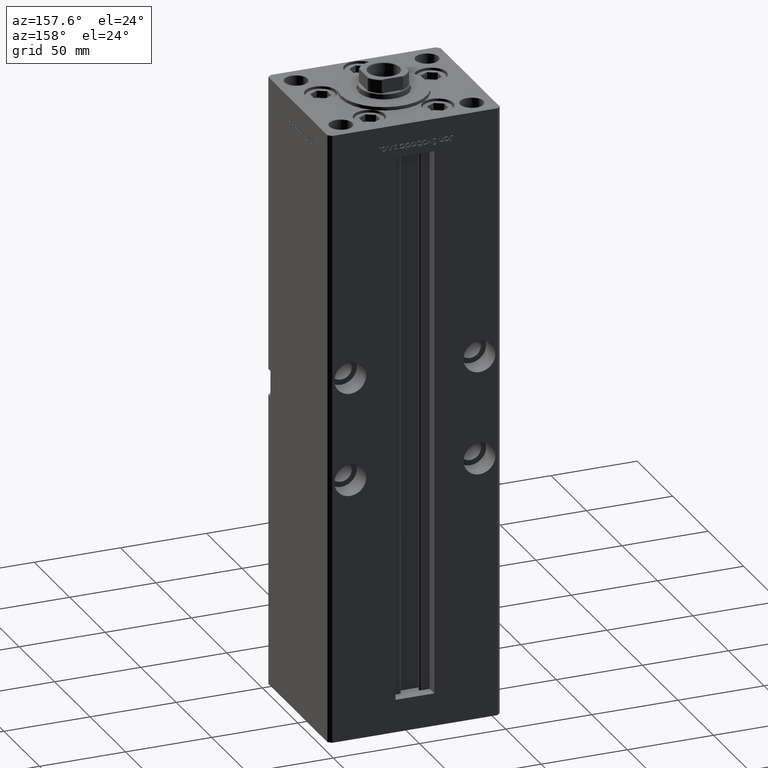
[diagram: clean part render]
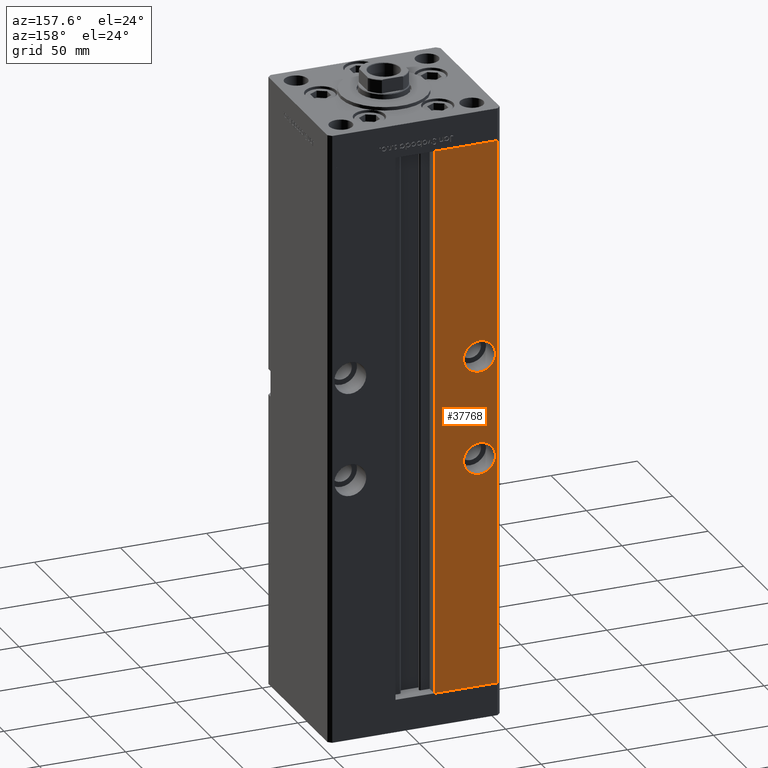
[diagram: same view with one face highlighted and labeled with its STEP entity id]
A machine part, auxiliary view. The second image highlights one B-rep face of the part: STEP entity #37768.
In plain terms, the highlighted planar face has unit normal (0, -1, 0).
Its self-contained STEP definition (entity closure, byte-faithful):
#368 = CARTESIAN_POINT ( 'NONE',  ( -11.24999999999999645, 43.50000000000000000, 318.5000000000000000 ) ) ;
#1638 = ORIENTED_EDGE ( 'NONE', *, *, #14879, .F. ) ;
#1739 = LINE ( 'NONE', #46866, #8565 ) ;
#2301 = VECTOR ( 'NONE', #45158, 1000.000000000000000 ) ;
#2702 = EDGE_CURVE ( 'NONE', #8433, #29006, #34728, .T. ) ;
#3136 = DIRECTION ( 'NONE',  ( 0.000000000000000000, 1.000000000000000000, 0.000000000000000000 ) ) ;
#3544 = ORIENTED_EDGE ( 'NONE', *, *, #37588, .F. ) ;
#5784 = DIRECTION ( 'NONE',  ( -1.000000000000000000, 0.000000000000000000, 0.000000000000000000 ) ) ;
#6402 = CARTESIAN_POINT ( 'NONE',  ( -37.50000000000000000, 43.50000000000000000, 133.5000000000000000 ) ) ;
#7619 = FACE_BOUND ( 'NONE', #26360, .T. ) ;
#7885 = FACE_OUTER_BOUND ( 'NONE', #25953, .T. ) ;
#8371 = LINE ( 'NONE', #16676, #2301 ) ;
#8433 = VERTEX_POINT ( 'NONE', #28416 ) ;
#8565 = VECTOR ( 'NONE', #5784, 1000.000000000000000 ) ;
#8817 = DIRECTION ( 'NONE',  ( 0.000000000000000000, 1.000000000000000000, -0.000000000000000000 ) ) ;
#10176 = AXIS2_PLACEMENT_3D ( 'NONE', #28273, #52207, #15930 ) ;
#10875 = DIRECTION ( 'NONE',  ( 0.000000000000000000, 0.000000000000000000, -1.000000000000000000 ) ) ;
#12306 = CARTESIAN_POINT ( 'NONE',  ( -37.50000000000000000, 43.50000000000000000, 193.5000000000000000 ) ) ;
#12835 = ORIENTED_EDGE ( 'NONE', *, *, #13850, .F. ) ;
#13850 = EDGE_CURVE ( 'NONE', #24085, #16432, #46461, .T. ) ;
#14879 = EDGE_CURVE ( 'NONE', #16432, #24085, #40502, .T. ) ;
#15930 = DIRECTION ( 'NONE',  ( 0.000000000000000000, -0.000000000000000000, -1.000000000000000000 ) ) ;
#16432 = VERTEX_POINT ( 'NONE', #33490 ) ;
#16676 = CARTESIAN_POINT ( 'NONE',  ( -48.00000000000000711, 43.50000000000000000, 318.5000000000000000 ) ) ;
#17658 = CARTESIAN_POINT ( 'NONE',  ( -37.50000000000000000, 43.50000000000000000, 142.7500000000000284 ) ) ;
#18381 = DIRECTION ( 'NONE',  ( -0.000000000000000000, -0.000000000000000000, 1.000000000000000000 ) ) ;
#18999 = VERTEX_POINT ( 'NONE', #44311 ) ;
#20082 = ORIENTED_EDGE ( 'NONE', *, *, #20395, .F. ) ;
#20395 = EDGE_CURVE ( 'NONE', #29006, #8433, #35498, .T. ) ;
#20790 = LINE ( 'NONE', #368, #33790 ) ;
#20806 = EDGE_CURVE ( 'NONE', #18999, #42422, #20790, .T. ) ;
#22396 = LINE ( 'NONE', #38527, #26451 ) ;
#22401 = DIRECTION ( 'NONE',  ( 0.000000000000000000, 0.000000000000000000, 1.000000000000000000 ) ) ;
#23586 = ORIENTED_EDGE ( 'NONE', *, *, #33241, .F. ) ;
#24085 = VERTEX_POINT ( 'NONE', #41315 ) ;
#24646 = DIRECTION ( 'NONE',  ( 0.000000000000000000, 0.000000000000000000, -1.000000000000000000 ) ) ;
#24727 = CARTESIAN_POINT ( 'NONE',  ( -11.24999999999999645, 43.50000000000000000, 0.000000000000000000 ) ) ;
#25953 = EDGE_LOOP ( 'NONE', ( #34669, #3544, #40537, #23586 ) ) ;
#26360 = EDGE_LOOP ( 'NONE', ( #20082, #28553 ) ) ;
#26451 = VECTOR ( 'NONE', #18381, 1000.000000000000000 ) ;
#28273 = CARTESIAN_POINT ( 'NONE',  ( -11.24999999999999645, 43.50000000000000000, 318.5000000000000000 ) ) ;
#28416 = CARTESIAN_POINT ( 'NONE',  ( -37.50000000000000000, 43.50000000000000000, 124.2500000000000000 ) ) ;
#28553 = ORIENTED_EDGE ( 'NONE', *, *, #2702, .F. ) ;
#29006 = VERTEX_POINT ( 'NONE', #17658 ) ;
#29056 = EDGE_LOOP ( 'NONE', ( #1638, #12835 ) ) ;
#30376 = AXIS2_PLACEMENT_3D ( 'NONE', #6402, #3136, #47748 ) ;
#31273 = DIRECTION ( 'NONE',  ( 0.000000000000000000, 1.000000000000000000, -0.000000000000000000 ) ) ;
#33241 = EDGE_CURVE ( 'NONE', #18999, #46582, #8371, .T. ) ;
#33295 = VERTEX_POINT ( 'NONE', #24727 ) ;
#33490 = CARTESIAN_POINT ( 'NONE',  ( -37.50000000000000000, 43.50000000000000000, 202.7500000000000000 ) ) ;
#33790 = VECTOR ( 'NONE', #49005, 1000.000000000000000 ) ;
#34494 = CARTESIAN_POINT ( 'NONE',  ( -37.50000000000000000, 43.50000000000000000, 133.5000000000000000 ) ) ;
#34640 = CARTESIAN_POINT ( 'NONE',  ( -11.24999999999999645, 43.50000000000000000, 318.5000000000000000 ) ) ;
#34669 = ORIENTED_EDGE ( 'NONE', *, *, #20806, .T. ) ;
#34728 = CIRCLE ( 'NONE', #48457, 9.250000000000008882 ) ;
#35498 = CIRCLE ( 'NONE', #30376, 9.250000000000008882 ) ;
#35539 = DIRECTION ( 'NONE',  ( 0.000000000000000000, 1.000000000000000000, 0.000000000000000000 ) ) ;
#37054 = AXIS2_PLACEMENT_3D ( 'NONE', #46892, #31273, #10875 ) ;
#37109 = CARTESIAN_POINT ( 'NONE',  ( -48.00000000000000711, 43.50000000000000000, 0.000000000000000000 ) ) ;
#37588 = EDGE_CURVE ( 'NONE', #33295, #42422, #22396, .T. ) ;
#37768 = ADVANCED_FACE ( 'NONE', ( #43867, #7619, #7885 ), #52469, .F. ) ;
#38527 = CARTESIAN_POINT ( 'NONE',  ( -11.24999999999999645, 43.50000000000000000, 0.000000000000000000 ) ) ;
#40502 = CIRCLE ( 'NONE', #37054, 9.250000000000008882 ) ;
#40537 = ORIENTED_EDGE ( 'NONE', *, *, #41743, .T. ) ;
#41315 = CARTESIAN_POINT ( 'NONE',  ( -37.50000000000000000, 43.50000000000000000, 184.2500000000000000 ) ) ;
#41743 = EDGE_CURVE ( 'NONE', #33295, #46582, #1739, .T. ) ;
#42422 = VERTEX_POINT ( 'NONE', #34640 ) ;
#43867 = FACE_BOUND ( 'NONE', #29056, .T. ) ;
#44311 = CARTESIAN_POINT ( 'NONE',  ( -48.00000000000000711, 43.50000000000000000, 318.5000000000000000 ) ) ;
#45158 = DIRECTION ( 'NONE',  ( -0.000000000000000000, -0.000000000000000000, -1.000000000000000000 ) ) ;
#46461 = CIRCLE ( 'NONE', #51635, 9.250000000000008882 ) ;
#46582 = VERTEX_POINT ( 'NONE', #37109 ) ;
#46866 = CARTESIAN_POINT ( 'NONE',  ( -11.24999999999999645, 43.50000000000000000, 0.000000000000000000 ) ) ;
#46892 = CARTESIAN_POINT ( 'NONE',  ( -37.50000000000000000, 43.50000000000000000, 193.5000000000000000 ) ) ;
#47748 = DIRECTION ( 'NONE',  ( 0.000000000000000000, 0.000000000000000000, 1.000000000000000000 ) ) ;
#48457 = AXIS2_PLACEMENT_3D ( 'NONE', #34494, #35539, #22401 ) ;
#49005 = DIRECTION ( 'NONE',  ( 1.000000000000000000, 0.000000000000000000, 0.000000000000000000 ) ) ;
#51635 = AXIS2_PLACEMENT_3D ( 'NONE', #12306, #8817, #24646 ) ;
#52207 = DIRECTION ( 'NONE',  ( 0.000000000000000000, -1.000000000000000000, 0.000000000000000000 ) ) ;
#52469 = PLANE ( 'NONE',  #10176 ) ;